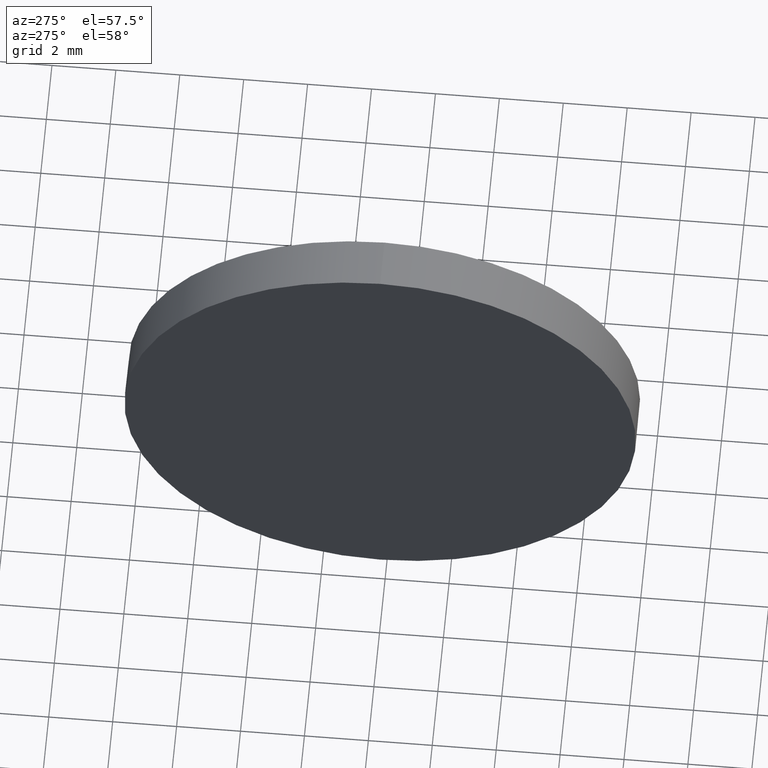
[diagram: clean part render]
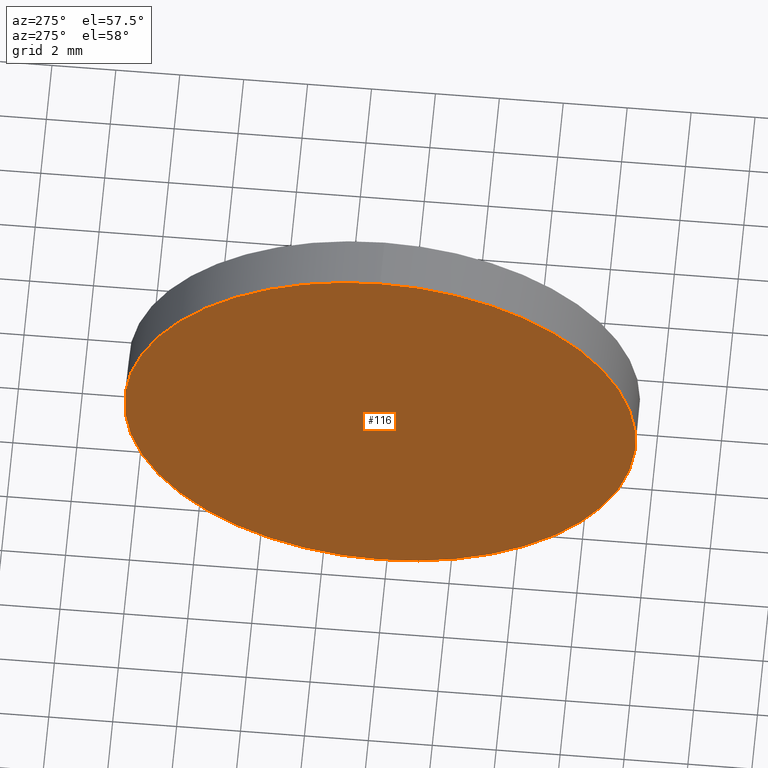
[diagram: same view with one face highlighted and labeled with its STEP entity id]
A machine part, auxiliary view. The second image highlights one B-rep face of the part: STEP entity #116.
In plain terms, the highlighted planar face has unit normal (1, 0, 0).
Its self-contained STEP definition (entity closure, byte-faithful):
#12 = CARTESIAN_POINT ( 'NONE',  ( 502.4780972841085100, 80.19945685201562900, 0.0000000000000000000 ) ) ;
#13 = CARTESIAN_POINT ( 'NONE',  ( 502.4780972841085100, 80.19945685201562900, 0.0000000000000000000 ) ) ;
#15 = CIRCLE ( 'NONE', #125, 8.000000000000007100 ) ;
#25 = EDGE_LOOP ( 'NONE', ( #67, #39 ) ) ;
#29 = DIRECTION ( 'NONE',  ( 1.000000000000000000, 0.0000000000000000000, 0.0000000000000000000 ) ) ;
#30 = CARTESIAN_POINT ( 'NONE',  ( 502.4780972841085100, 80.19945685201562900, 0.0000000000000000000 ) ) ;
#34 = DIRECTION ( 'NONE',  ( -1.000000000000000000, -0.0000000000000000000, -0.0000000000000000000 ) ) ;
#39 = ORIENTED_EDGE ( 'NONE', *, *, #145, .T. ) ;
#60 = DIRECTION ( 'NONE',  ( 0.0000000000000000000, 0.0000000000000000000, -1.000000000000000000 ) ) ;
#67 = ORIENTED_EDGE ( 'NONE', *, *, #86, .T. ) ;
#70 = AXIS2_PLACEMENT_3D ( 'NONE', #30, #29, #60 ) ;
#86 = EDGE_CURVE ( 'NONE', #113, #99, #15, .T. ) ;
#91 = CARTESIAN_POINT ( 'NONE',  ( 502.4780972841085100, 80.19945685201562900, -8.000000000000007100 ) ) ;
#99 = VERTEX_POINT ( 'NONE', #91 ) ;
#101 = AXIS2_PLACEMENT_3D ( 'NONE', #12, #154, #163 ) ;
#106 = CIRCLE ( 'NONE', #101, 8.000000000000007100 ) ;
#113 = VERTEX_POINT ( 'NONE', #138 ) ;
#116 = ADVANCED_FACE ( 'NONE', ( #165 ), #139, .F. ) ;
#125 = AXIS2_PLACEMENT_3D ( 'NONE', #13, #34, #126 ) ;
#126 = DIRECTION ( 'NONE',  ( 0.0000000000000000000, 0.0000000000000000000, 1.000000000000000000 ) ) ;
#138 = CARTESIAN_POINT ( 'NONE',  ( 502.4780972841085100, 80.19945685201562900, 8.000000000000007100 ) ) ;
#139 = PLANE ( 'NONE',  #70 ) ;
#145 = EDGE_CURVE ( 'NONE', #99, #113, #106, .T. ) ;
#154 = DIRECTION ( 'NONE',  ( -1.000000000000000000, -0.0000000000000000000, -0.0000000000000000000 ) ) ;
#163 = DIRECTION ( 'NONE',  ( 0.0000000000000000000, 0.0000000000000000000, 1.000000000000000000 ) ) ;
#165 = FACE_OUTER_BOUND ( 'NONE', #25, .T. ) ;